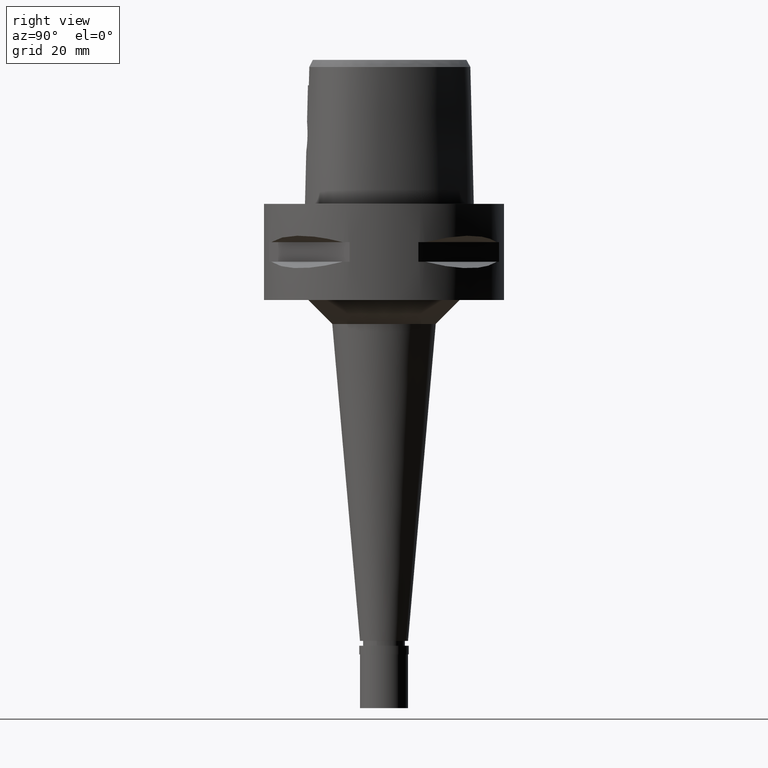
[diagram: clean part render]
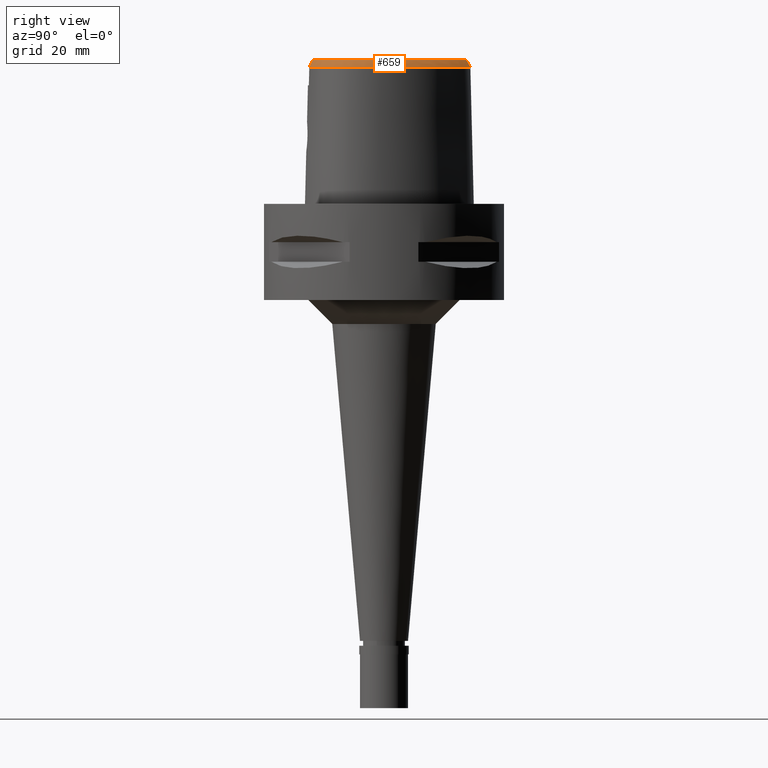
[diagram: same view with one face highlighted and labeled with its STEP entity id]
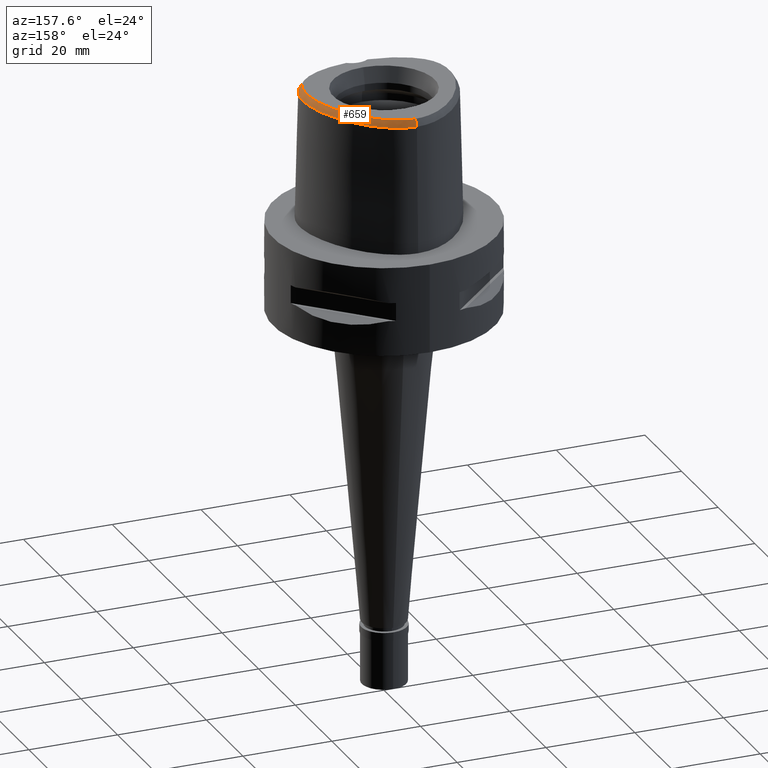
[diagram: same view with one face highlighted and labeled with its STEP entity id]
A machine part, right view. The second image highlights one B-rep face of the part: STEP entity #659.
A second angle (auxiliary view) of the same face is appended — the face is thin or edge-on in the first view.
In plain terms, the highlighted face is a freeform B-spline surface patch.
Its self-contained STEP definition (entity closure, byte-faithful):
#5 = CARTESIAN_POINT ( 'NONE',  ( 6.811957922873999927, -14.61906614561000062, 28.96164951612000138 ) ) ;
#23 = CARTESIAN_POINT ( 'NONE',  ( 5.383347431387000448, 15.79948695754999832, 29.55901468431999746 ) ) ;
#26 = EDGE_CURVE ( 'NONE', #850, #3437, #2330, .T. ) ;
#29 = CARTESIAN_POINT ( 'NONE',  ( 11.49884206355000060, -12.25755417911999956, 29.55901311661000008 ) ) ;
#49 = CARTESIAN_POINT ( 'NONE',  ( 11.99821396572000154, -11.51876842044000071, 30.15637882876000120 ) ) ;
#65 = CARTESIAN_POINT ( 'NONE',  ( 0.5630487155510999209, 17.05259666566999854, 30.15637892731999870 ) ) ;
#75 = CARTESIAN_POINT ( 'NONE',  ( 13.84595107261999836, -10.35026419380999840, 29.55901292788999868 ) ) ;
#104 = CARTESIAN_POINT ( 'NONE',  ( 15.85753994068999795, -8.668426278754999714, 28.36428066499999900 ) ) ;
#129 = CARTESIAN_POINT ( 'NONE',  ( 15.62682612950000127, -6.510507103326999889, 30.15637891547999772 ) ) ;
#142 = CARTESIAN_POINT ( 'NONE',  ( 13.38374903490383794, 6.636915464739277404, 30.00000000001027445 ) ) ;
#156 = CARTESIAN_POINT ( 'NONE',  ( 15.82776246383999919, -7.949589654748999479, 28.96164722686999937 ) ) ;
#170 = CARTESIAN_POINT ( 'NONE',  ( 2.406543924163999648, -14.80491841401999942, 30.00000000000000000 ) ) ;
#215 = CARTESIAN_POINT ( 'NONE',  ( 8.816245487876798848, -13.33426548781522669, 30.00000000000055422 ) ) ;
#221 = CARTESIAN_POINT ( 'NONE',  ( 14.53848563899000013, 5.623059560876999541, 28.96164762508000123 ) ) ;
#228 = CARTESIAN_POINT ( 'NONE',  ( 2.372804142232999958, -14.72121863141000020, 30.15637881881000126 ) ) ;
#237 = CARTESIAN_POINT ( 'NONE',  ( 11.92667412982082453, 9.061218325781521088, 30.00000000000179767 ) ) ;
#244 = CARTESIAN_POINT ( 'NONE',  ( 7.861194524857999077, 14.03209857615999923, 29.55901309603999749 ) ) ;
#271 = CARTESIAN_POINT ( 'NONE',  ( 16.25740607951000172, 0.6184107407232999343, 28.96164952428999939 ) ) ;
#290 = CARTESIAN_POINT ( 'NONE',  ( 12.13152840671999932, 9.199520325337998017, 29.55901329122000121 ) ) ;
#313 = CARTESIAN_POINT ( 'NONE',  ( 15.95690338998999991, 1.814945694562999812, 28.96164923533000035 ) ) ;
#344 = CARTESIAN_POINT ( 'NONE',  ( 3.272285797652000117, 17.15417183457000050, 28.96164633673999944 ) ) ;
#352 = CARTESIAN_POINT ( 'NONE',  ( 14.68963295328999941, -8.696932986701002122, 30.15637889382000125 ) ) ;
#369 = CARTESIAN_POINT ( 'NONE',  ( 0.04269977615394000142, 18.07562135881000387, 28.36428130445999685 ) ) ;
#376 = CARTESIAN_POINT ( 'NONE',  ( 9.156566131324998636, -14.18565747194999815, 28.36428102868000067 ) ) ;
#394 = CARTESIAN_POINT ( 'NONE',  ( 0.5865152085029999851, 17.38670808606000051, 29.55901288799000071 ) ) ;
#400 = CARTESIAN_POINT ( 'NONE',  ( 13.36047301656999942, -10.83551467842999827, 29.55901290853000063 ) ) ;
#418 = CARTESIAN_POINT ( 'NONE',  ( 1.288648341688999999, 17.98666989274000017, 28.36428074679000133 ) ) ;
#425 = CARTESIAN_POINT ( 'NONE',  ( 8.783709966213001152, -13.25287024225000110, 30.15637890634000229 ) ) ;
#440 = CARTESIAN_POINT ( 'NONE',  ( 1.242207169301999814, 17.65498039884000292, 28.96164680896000121 ) ) ;
#448 = CARTESIAN_POINT ( 'NONE',  ( 5.428109747420000630, -14.26950956910999757, 30.15637879781999686 ) ) ;
#474 = CARTESIAN_POINT ( 'NONE',  ( 16.13527758572000081, -8.082292195693000281, 28.36428140512000340 ) ) ;
#501 = CARTESIAN_POINT ( 'NONE',  ( 16.33217434728999606, -4.393003428644999708, 29.55901321837000140 ) ) ;
#515 = CARTESIAN_POINT ( 'NONE',  ( 15.90185233182071478, -0.6139199331566413953, 29.99999999999904077 ) ) ;
#527 = CARTESIAN_POINT ( 'NONE',  ( 15.43433514042999910, -7.119478767406000053, 30.15637888094000374 ) ) ;
#538 = CARTESIAN_POINT ( 'NONE',  ( 7.783816186093214462, -13.71424622166908414, 30.00000000000649436 ) ) ;
#563 = CARTESIAN_POINT ( 'NONE',  ( 11.36765809995607768, -12.04801986072790143, 30.00000000000257572 ) ) ;
#587 = CARTESIAN_POINT ( 'NONE',  ( 16.04058509949630107, -1.654113685488471930, 30.00000000000315126 ) ) ;
#592 = CARTESIAN_POINT ( 'NONE',  ( 9.600973720496998709, 12.37503909173999972, 29.55901343650000257 ) ) ;
#605 = CARTESIAN_POINT ( 'NONE',  ( 13.19176257967066235, -10.65479018522811749, 30.00000000000444089 ) ) ;
#613 = CARTESIAN_POINT ( 'NONE',  ( 9.189572803524999500, 13.73794398413000017, 28.36428364498000221 ) ) ;
#619 = CARTESIAN_POINT ( 'NONE',  ( 0.6295828025427904207, 17.98202997637829625, 28.52071728562181718 ) ) ;
#620 = CARTESIAN_POINT ( 'NONE',  ( 1.993554834557000222, -15.75790062269000202, 28.36428193357000183 ) ) ;
#639 = CARTESIAN_POINT ( 'NONE',  ( 7.214342649809000640, 14.97919597573999972, 28.96164659047000001 ) ) ;
#659 = ADVANCED_FACE ( 'NONE', ( #667 ), #3459, .F. ) ;
#661 = CARTESIAN_POINT ( 'NONE',  ( 11.31593430602999995, 10.34052834388999997, 29.55901314858000006 ) ) ;
#667 = FACE_OUTER_BOUND ( 'NONE', #2258, .T. ) ;
#684 = CARTESIAN_POINT ( 'NONE',  ( 13.60200919274999976, 6.752911650746000305, 29.55901304658999607 ) ) ;
#688 = CARTESIAN_POINT ( 'NONE',  ( 3.168920890822999770, -15.55911073834000113, 28.52071374672999582 ) ) ;
#707 = CARTESIAN_POINT ( 'NONE',  ( 0.6334481944069999537, 18.05493092684000089, 28.36428080932999762 ) ) ;
#736 = CARTESIAN_POINT ( 'NONE',  ( 14.09026485589999922, -10.57934665261000085, 28.96164694260999894 ) ) ;
#752 = CARTESIAN_POINT ( 'NONE',  ( 7.416339914482000140, 15.24625929495000065, 28.36428040260000216 ) ) ;
#757 = CARTESIAN_POINT ( 'NONE',  ( 6.900453772875000169, -14.94199332345999842, 28.36428501138999891 ) ) ;
#778 = CARTESIAN_POINT ( 'NONE',  ( -0.3447936284497999937, 18.06486498122000128, 28.36428104704999953 ) ) ;
#785 = CARTESIAN_POINT ( 'NONE',  ( 13.58901004801000134, -11.08032608396999841, 28.96164689701999961 ) ) ;
#806 = CARTESIAN_POINT ( 'NONE',  ( 1.195765996915000073, 17.32329090494999946, 29.55901287113000109 ) ) ;
#814 = CARTESIAN_POINT ( 'NONE',  ( 12.38837415017999888, -12.06316683604999973, 28.96164750303000091 ) ) ;
#834 = CARTESIAN_POINT ( 'NONE',  ( 3.168920890822999770, -15.55911073834000113, 28.52071374672999582 ) ) ;
#835 = CARTESIAN_POINT ( 'NONE',  ( 4.198834560233000168, -14.84173614520000051, 29.55901279253000169 ) ) ;
#850 = VERTEX_POINT ( 'NONE', #3771 ) ;
#863 = CARTESIAN_POINT ( 'NONE',  ( 16.57619388313999664, -5.233097250372000353, 28.96164704107999910 ) ) ;
#890 = CARTESIAN_POINT ( 'NONE',  ( 16.37265104723999798, -3.537233261996999722, 29.55901301200000120 ) ) ;
#902 = CARTESIAN_POINT ( 'NONE',  ( 15.87349190488043149, -5.869792298897770877, 30.00000000000364864 ) ) ;
#905 = EDGE_CURVE ( 'NONE', #2325, #3884, #1146, .T. ) ;
#922 = CARTESIAN_POINT ( 'NONE',  ( 16.08569500455402590, -4.373922630229267305, 29.99999999999926459 ) ) ;
#946 = CARTESIAN_POINT ( 'NONE',  ( 7.700998872106708859, 13.84384558891352590, 30.00000000000675016 ) ) ;
#969 = CARTESIAN_POINT ( 'NONE',  ( 5.258649622039808236, 15.58603480843260947, 30.00000000000086331 ) ) ;
#975 = CARTESIAN_POINT ( 'NONE',  ( 13.47169455684000106, 8.342811227810999597, 28.36428103828000147 ) ) ;
#988 = CARTESIAN_POINT ( 'NONE',  ( 6.863227115065181572, 14.51498137220724161, 29.99999999999699796 ) ) ;
#995 = CARTESIAN_POINT ( 'NONE',  ( 8.295200145402001013, 14.54211775047999922, 28.36428158102999930 ) ) ;
#1005 = B_SPLINE_CURVE_WITH_KNOTS ( 'NONE', 3,
 ( #4054, #2666, #4781, #3342 ),
 .UNSPECIFIED., .F., .F.,
 ( 4, 4 ),
 ( 0.0000000000000000000, 1.000000000000000000 ),
 .UNSPECIFIED. ) ;
#1018 = CARTESIAN_POINT ( 'NONE',  ( 15.57112484373000072, 3.057090549056999951, 28.96164699042999757 ) ) ;
#1028 = CARTESIAN_POINT ( 'NONE',  ( 16.47905536661487247, -6.962316254603639010, 28.52071728562181718 ) ) ;
#1045 = CARTESIAN_POINT ( 'NONE',  ( 14.78757469967999860, 4.206445065431000607, 29.55901289882999805 ) ) ;
#1049 = CARTESIAN_POINT ( 'NONE',  ( 14.26907046692155845, -10.79012245165770878, 28.52071728562181718 ) ) ;
#1068 = CARTESIAN_POINT ( 'NONE',  ( 6.557248700363000005, 15.85608241095999915, 28.36428490705000272 ) ) ;
#1079 = CARTESIAN_POINT ( 'NONE',  ( 1.921221870050999980, -14.75651979482999998, 30.15637881982999957 ) ) ;
#1107 = CARTESIAN_POINT ( 'NONE',  ( 11.33338046473983418, -13.08225241902047742, 28.52071728562181718 ) ) ;
#1108 = CARTESIAN_POINT ( 'NONE',  ( 8.075087580344998628, -14.58361699994999761, 28.36428427248999995 ) ) ;
#1124 = CARTESIAN_POINT ( 'NONE',  ( -0.3070870358840999681, 17.06141486598999890, 30.15637890457999859 ) ) ;
#1130 = CARTESIAN_POINT ( 'NONE',  ( 11.04319991634000075, -13.30015657062999956, 28.36428094823999757 ) ) ;
#1144 = CARTESIAN_POINT ( 'NONE',  ( 3.870148887526999815, 16.56237951852999757, 29.55901320577000035 ) ) ;
#1146 = B_SPLINE_CURVE_WITH_KNOTS ( 'NONE', 3,
 ( #2009, #1704, #4606, #3876, #4233, #1662, #1682, #3205, #1286, #969, #1263, #988, #946, #2034, #4298, #2804, #3183, #237, #1630, #142, #4647, #4320, #4627, #3941, #2782, #515, #587, #2418, #1725, #922, #4584, #902, #2483, #2461, #3562, #1330, #2831, #2076, #4670, #3922, #605, #4251, #3495, #563, #2057, #3126, #215, #538, #2761, #3580, #3228, #2398, #3521, #170 ),
 .UNSPECIFIED., .F., .F.,
 ( 4, 1, 1, 1, 1, 1, 1, 1, 1, 1, 1, 1, 1, 1, 1, 1, 1, 1, 1, 1, 1, 1, 1, 1, 1, 1, 1, 1, 1, 1, 1, 1, 1, 1, 1, 1, 1, 1, 1, 1, 1, 1, 1, 1, 1, 1, 1, 1, 1, 1, 1, 4 ),
 ( 0.0000000000000000000, 0.01988587058640001182, 0.03977174117009996124, 0.05965761175399997285, 0.07954348233780006439, 0.09942935292160004490, 0.1193152235055000565, 0.1392010940893000370, 0.1590869646731999376, 0.1789728352568999981, 0.1988587058408000097, 0.2187445764247000213, 0.2386304470083999707, 0.2585163175922999823, 0.2784021881761000738, 0.2982880587598999433, 0.3181739293438000660, 0.3380597999276000465, 0.3579456705113999160, 0.3778315410952000075, 0.3977174116791000191, 0.4176032822630000307, 0.4374891528466999802, 0.4573750234305999918, 0.4772608940143999723, 0.4971467645981999528, 0.5170326351820999644, 0.5369185057659000559, 0.5568043763497000365, 0.5766902469335999371, 0.5965761175174000286, 0.6164619881012000091, 0.6363478586849999896, 0.6562337292689000012, 0.6761195998528000128, 0.6960054704364999623, 0.7158913410203999739, 0.7357772116042000654, 0.7556630821880000459, 0.7755489527718999465, 0.7954348233557000381, 0.8153206939395000186, 0.8352065645232999991, 0.8550924351072000107, 0.8749783056909999912, 0.8948641762747999717, 0.9147500468586799993, 0.9346359174424899718, 0.9545217880263200394, 0.9744076586101599879, 0.9942935291939859477, 1.000000000000000000 ),
 .UNSPECIFIED. ) ;
#1149 = CARTESIAN_POINT ( 'NONE',  ( 4.145919954188999945, -14.51112016386000114, 30.15637896116000150 ) ) ;
#1169 = CARTESIAN_POINT ( 'NONE',  ( 0.03975722115209000262, 17.40584913369000120, 29.55901302146999754 ) ) ;
#1174 = CARTESIAN_POINT ( 'NONE',  ( 4.251749166277000391, -15.17235212653999987, 28.96164662389000455 ) ) ;
#1201 = CARTESIAN_POINT ( 'NONE',  ( 14.27377831343000025, -9.861113513142999665, 29.55901308940000050 ) ) ;
#1224 = CARTESIAN_POINT ( 'NONE',  ( 16.27208702944000152, -6.690234237660000360, 28.96164692721999856 ) ) ;
#1248 = CARTESIAN_POINT ( 'NONE',  ( 16.24460968378999937, -5.186137865231000177, 29.55901296969999947 ) ) ;
#1263 = CARTESIAN_POINT ( 'NONE',  ( 6.048015628560055923, 15.09357031579881436, 30.00000000000177991 ) ) ;
#1286 = CARTESIAN_POINT ( 'NONE',  ( 4.499552315895770427, 15.99769543814282002, 30.00000000000135358 ) ) ;
#1330 = CARTESIAN_POINT ( 'NONE',  ( 15.04259016984939379, -8.247723288183152590, 30.00000000000323297 ) ) ;
#1340 = CARTESIAN_POINT ( 'NONE',  ( 12.61078246347000054, 7.825357970991000833, 30.15637890542999955 ) ) ;
#1360 = CARTESIAN_POINT ( 'NONE',  ( 8.078197335130001377, 14.28710816332000100, 28.96164733852999973 ) ) ;
#1366 = CARTESIAN_POINT ( 'NONE',  ( 15.84228676732985974, 3.460033425849729394, 28.52071728562181718 ) ) ;
#1382 = CARTESIAN_POINT ( 'NONE',  ( 15.09817487549999981, 4.331479311237999674, 28.96164687419999950 ) ) ;
#1390 = CARTESIAN_POINT ( 'NONE',  ( 4.422474504766016778, 17.08283549832751547, 28.52071728562181718 ) ) ;
#1409 = CARTESIAN_POINT ( 'NONE',  ( 15.81535064210000030, -0.6281001624691999741, 30.15637880266000082 ) ) ;
#1434 = CARTESIAN_POINT ( 'NONE',  ( 14.93737887550000032, 2.840754862860999985, 30.15637890596000048 ) ) ;
#1439 = CARTESIAN_POINT ( 'NONE',  ( 15.58740368722081548, -8.999391713747634469, 28.52071728562181718 ) ) ;
#1461 = CARTESIAN_POINT ( 'NONE',  ( 5.902447799197319434, -15.16907841529253886, 28.52071728562181718 ) ) ;
#1463 = CARTESIAN_POINT ( 'NONE',  ( 10.14507675808999920, -13.75562869518999953, 28.36428077143000337 ) ) ;
#1485 = CARTESIAN_POINT ( 'NONE',  ( 6.185303998690000249, 15.29914227989000075, 29.55901399271999708 ) ) ;
#1491 = CARTESIAN_POINT ( 'NONE',  ( 7.968715019489000184, -14.26612205246999920, 28.96164904707000076 ) ) ;
#1508 = CARTESIAN_POINT ( 'NONE',  ( 0.04122849865300999561, 17.74073524625000076, 28.96164716295999852 ) ) ;
#1516 = CARTESIAN_POINT ( 'NONE',  ( 6.634966222872999531, -13.97321178992000057, 30.15637852557999921 ) ) ;
#1537 = CARTESIAN_POINT ( 'NONE',  ( 12.59962777141000068, -11.05698296501999955, 30.15637892080999904 ) ) ;
#1556 = CARTESIAN_POINT ( 'NONE',  ( -0.4663366535901999899, 17.05306950905000107, 30.15637893935999969 ) ) ;
#1564 = CARTESIAN_POINT ( 'NONE',  ( 12.58345424240000021, -12.33536604384999968, 28.36428184016999765 ) ) ;
#1592 = CARTESIAN_POINT ( 'NONE',  ( 15.94945657947000051, -6.600370670492999636, 29.55901292135000347 ) ) ;
#1616 = CARTESIAN_POINT ( 'NONE',  ( 16.11551996699000000, -5.920249058447999424, 29.55901289326999759 ) ) ;
#1630 = CARTESIAN_POINT ( 'NONE',  ( 12.68590586676948284, 7.870511070825564559, 30.00000000000679279 ) ) ;
#1647 = CARTESIAN_POINT ( 'NONE',  ( 15.52024734197000022, -7.816887113804999565, 29.55901304861000156 ) ) ;
#1662 = CARTESIAN_POINT ( 'NONE',  ( 2.412811123805013391, 16.81558681049622095, 30.00000000000830624 ) ) ;
#1682 = CARTESIAN_POINT ( 'NONE',  ( 3.078265684543715519, 16.60532678263180628, 30.00000000000247624 ) ) ;
#1704 = CARTESIAN_POINT ( 'NONE',  ( 0.1912597614439594529, 17.15328888648638639, 30.00000000000587619 ) ) ;
#1710 = CARTESIAN_POINT ( 'NONE',  ( 10.72396377807000079, 11.61800991063999966, 28.96164665574000097 ) ) ;
#1725 = CARTESIAN_POINT ( 'NONE',  ( 16.12546998862716308, -3.533461825553556146, 30.00000000000563460 ) ) ;
#1736 = CARTESIAN_POINT ( 'NONE',  ( 15.40877505133000014, 4.456513557045999718, 28.36428084955999651 ) ) ;
#1761 = CARTESIAN_POINT ( 'NONE',  ( 15.25425185961000096, 2.948922705958999746, 29.55901294819999947 ) ) ;
#1766 = CARTESIAN_POINT ( 'NONE',  ( 2.159414158918000037, -15.74591782496000114, 28.36428195439999911 ) ) ;
#1781 = CARTESIAN_POINT ( 'NONE',  ( 16.27920010292000086, 1.905703628979000142, 28.36428456906000051 ) ) ;
#1792 = CARTESIAN_POINT ( 'NONE',  ( 1.945332858220000016, -15.09031340411999977, 29.55901319108000180 ) ) ;
#1809 = CARTESIAN_POINT ( 'NONE',  ( 13.89766682646999918, 6.910041372508000102, 28.96164722209999809 ) ) ;
#1820 = CARTESIAN_POINT ( 'NONE',  ( 8.702202469522497097, -14.36510984286025483, 28.52071728562181718 ) ) ;
#1835 = CARTESIAN_POINT ( 'NONE',  ( -0.3322247642612000118, 17.73038160947000108, 28.96164699955999922 ) ) ;
#1842 = CARTESIAN_POINT ( 'NONE',  ( 14.97564992669000006, -8.871229260114001036, 29.55901298242000053 ) ) ;
#1864 = CARTESIAN_POINT ( 'NONE',  ( 10.72314195953000038, -12.71184929392000029, 29.55901292543000025 ) ) ;
#1883 = CARTESIAN_POINT ( 'NONE',  ( 5.999331647853999527, 15.02067221435000022, 30.15637853556000181 ) ) ;
#1891 = CARTESIAN_POINT ( 'NONE',  ( 9.860652439441000894, -13.14931146643000126, 29.55901287776999808 ) ) ;
#1915 = CARTESIAN_POINT ( 'NONE',  ( 10.88317093793000012, -13.00600293227000037, 28.96164693683999758 ) ) ;
#1931 = CARTESIAN_POINT ( 'NONE',  ( -0.5038393650865000684, 17.72130576345999842, 28.96164676863000054 ) ) ;
#1939 = CARTESIAN_POINT ( 'NONE',  ( 13.13193598513000104, -10.59070327289999902, 30.15637892002999720 ) ) ;
#1965 = EDGE_CURVE ( 'NONE', #850, #2325, #3429, .T. ) ;
#1971 = CARTESIAN_POINT ( 'NONE',  ( 16.99994165718999639, -4.444697551515999656, 28.36428203480000221 ) ) ;
#1997 = CARTESIAN_POINT ( 'NONE',  ( 15.55991959139999992, -8.514785188862999732, 28.96164675704000047 ) ) ;
#2009 = CARTESIAN_POINT ( 'NONE',  ( -6.303691439142001614E-11, 17.15328888647999861, 30.00000000000000000 ) ) ;
#2019 = CARTESIAN_POINT ( 'NONE',  ( 16.70748525432000164, -3.542342091685999783, 28.96164714065000112 ) ) ;
#2034 = CARTESIAN_POINT ( 'NONE',  ( 8.557117433366935089, 13.07415149353122175, 30.00000000000441958 ) ) ;
#2057 = CARTESIAN_POINT ( 'NONE',  ( 10.60500548644273522, -12.49469941439894960, 29.99999999999964828 ) ) ;
#2076 = CARTESIAN_POINT ( 'NONE',  ( 14.44767169633218806, -9.224476417585487198, 30.00000000000324718 ) ) ;
#2081 = CARTESIAN_POINT ( 'NONE',  ( 10.97999818271999928, 11.83377388643000039, 28.36428050542999912 ) ) ;
#2106 = CARTESIAN_POINT ( 'NONE',  ( 15.95340525056999859, -1.663261361530000038, 30.15637895961999959 ) ) ;
#2111 = CARTESIAN_POINT ( 'NONE',  ( 7.523733068098485077, 15.26501041874442954, 28.52071728562181718 ) ) ;
#2112 = CARTESIAN_POINT ( 'NONE',  ( 3.120169910351000109, -14.64780224869000058, 30.15637884598000085 ) ) ;
#2129 = CARTESIAN_POINT ( 'NONE',  ( 15.31230996412999978, 1.633429825731999907, 30.15637856787000359 ) ) ;
#2150 = CARTESIAN_POINT ( 'NONE',  ( 14.84201099019000125, 5.764396329479000158, 28.36428203243999846 ) ) ;
#2171 = CARTESIAN_POINT ( 'NONE',  ( 15.63460667705999718, 1.724187760148000237, 29.55901390160000020 ) ) ;
#2196 = CARTESIAN_POINT ( 'NONE',  ( 5.552264468761999971, 16.08863160922999924, 28.96165107833000008 ) ) ;
#2206 = CARTESIAN_POINT ( 'NONE',  ( 2.107143672687000091, -15.07862304301999856, 29.55901319669999694 ) ) ;
#2220 = CARTESIAN_POINT ( 'NONE',  ( 2.479732937904999712, 17.05359326648000007, 29.55901289546000044 ) ) ;
#2225 = CARTESIAN_POINT ( 'NONE',  ( 6.723462072872999684, -14.29613896777000015, 29.55901402085000029 ) ) ;
#2240 = CARTESIAN_POINT ( 'NONE',  ( 4.912545710174999414, 16.81639870465999920, 28.36428619404000173 ) ) ;
#2246 = CARTESIAN_POINT ( 'NONE',  ( 13.02378100684000017, -11.57536136220000067, 28.96164689183000007 ) ) ;
#2258 = EDGE_LOOP ( 'NONE', ( #3133, #4649, #4227, #3135 ) ) ;
#2274 = CARTESIAN_POINT ( 'NONE',  ( 5.498797574512000352, -14.59679100972000043, 29.55901325314000161 ) ) ;
#2297 = CARTESIAN_POINT ( 'NONE',  ( 3.160665751652000033, 16.83842049846999700, 29.55901267057000226 ) ) ;
#2305 = CARTESIAN_POINT ( 'NONE',  ( 10.56311298112000152, -12.41769565555999932, 30.15637891403000026 ) ) ;
#2325 = VERTEX_POINT ( 'NONE', #4710 ) ;
#2330 = B_SPLINE_CURVE_WITH_KNOTS ( 'NONE', 3,
 ( #3263, #619, #4702, #1390, #2111, #3593, #4681, #1366, #2865, #2889, #4353, #1028, #4022, #1439, #4773, #1049, #3688, #1107, #1820, #1461, #2565, #688 ),
 .UNSPECIFIED., .F., .F.,
 ( 4, 1, 1, 1, 1, 1, 1, 1, 1, 1, 1, 1, 1, 1, 1, 1, 1, 1, 1, 4 ),
 ( 0.0000000000000000000, 0.04404152929334106265, 0.08808305858551930545, 0.1761661171698760131, 0.2642491757542327346, 0.3523322343385894562, 0.4404152929230517599, 0.5284983515074085370, 0.5725398807995868422, 0.6165814100917650364, 0.6606229393839435637, 0.6826437040300327164, 0.7046644686762275622, 0.7266852333222110216, 0.7487059979683001743, 0.7927475272605842838, 0.8367890565527625890, 0.8808305858448352010, 0.9689136444292975048, 1.000000000000000000 ),
 .UNSPECIFIED. ) ;
#2332 = CARTESIAN_POINT ( 'NONE',  ( 16.35967832178000236, -2.616279235973999917, 29.55901293963999876 ) ) ;
#2359 = CARTESIAN_POINT ( 'NONE',  ( 16.59471747941999809, -6.780097804826000107, 28.36428093309000076 ) ) ;
#2388 = CARTESIAN_POINT ( 'NONE',  ( 15.21273222009000037, -7.684184572860999651, 30.15637887035000020 ) ) ;
#2398 = CARTESIAN_POINT ( 'NONE',  ( 3.130495111450797285, -14.73481892791780901, 30.00000000000195044 ) ) ;
#2418 = CARTESIAN_POINT ( 'NONE',  ( 16.11273027396887869, -2.627494158581054506, 29.99999999999850075 ) ) ;
#2448 = CARTESIAN_POINT ( 'NONE',  ( 15.88799782783999959, 3.165258392155000156, 28.36428103266000278 ) ) ;
#2461 = CARTESIAN_POINT ( 'NONE',  ( 15.51702143705522374, -7.148634146069892559, 30.00000000000114753 ) ) ;
#2470 = CARTESIAN_POINT ( 'NONE',  ( 16.80665757851000208, -0.4655951325349999559, 28.36428211316999892 ) ) ;
#2483 = CARTESIAN_POINT ( 'NONE',  ( 15.71128456932136253, -6.534031654962888069, 30.00000000000178701 ) ) ;
#2488 = CARTESIAN_POINT ( 'NONE',  ( 3.738422326385999916, 16.25448454957999900, 30.15637881462999914 ) ) ;
#2491 = CARTESIAN_POINT ( 'NONE',  ( 13.93143493656999965, 5.340386023671999993, 30.15637881038000145 ) ) ;
#2516 = CARTESIAN_POINT ( 'NONE',  ( 12.89775316126000071, 7.997842389931000717, 29.55901294971000226 ) ) ;
#2537 = CARTESIAN_POINT ( 'NONE',  ( 7.644191714585999442, 13.77708898898999834, 30.15637885354000147 ) ) ;
#2557 = CARTESIAN_POINT ( 'NONE',  ( 1.893876499782999989, 17.54140943430000021, 28.96164719700000134 ) ) ;
#2565 = CARTESIAN_POINT ( 'NONE',  ( 3.738627708318569720, -15.49270856215134629, 28.52071728562181718 ) ) ;
#2588 = CARTESIAN_POINT ( 'NONE',  ( 4.460069093866000145, 15.91942531736999911, 30.15637841251999873 ) ) ;
#2597 = CARTESIAN_POINT ( 'NONE',  ( 15.54768387348000047, -9.219821806938000464, 28.36428115962999996 ) ) ;
#2610 = CARTESIAN_POINT ( 'NONE',  ( -0.3196559000726000299, 17.39589823773000177, 29.55901295207000246 ) ) ;
#2615 = CARTESIAN_POINT ( 'NONE',  ( 11.85424857146999855, -12.82522920847000059, 28.36428165732999673 ) ) ;
#2630 = CARTESIAN_POINT ( 'NONE',  ( 1.962768353894999818, 17.86916529302999734, 28.36428135806999862 ) ) ;
#2637 = CARTESIAN_POINT ( 'NONE',  ( 10.00286459876000045, -13.45247008081000040, 28.96164682459999895 ) ) ;
#2666 = CARTESIAN_POINT ( 'NONE',  ( 2.935843368179272606, -15.25651436811634554, 29.10537844861361023 ) ) ;
#2667 = CARTESIAN_POINT ( 'NONE',  ( 14.33457863917000097, -10.80842911140999973, 28.36428095732999921 ) ) ;
#2693 = CARTESIAN_POINT ( 'NONE',  ( 14.79230535219000053, -10.28517014352999759, 28.36428155645000260 ) ) ;
#2719 = CARTESIAN_POINT ( 'NONE',  ( 16.06605689950999860, -7.342225314874998965, 28.96164715656000155 ) ) ;
#2745 = CARTESIAN_POINT ( 'NONE',  ( 16.66605800223999978, -4.418850490080000526, 28.96164762659000047 ) ) ;
#2761 = CARTESIAN_POINT ( 'NONE',  ( 6.658132732489084660, -14.05774790738687585, 29.99999999999803180 ) ) ;
#2782 = CARTESIAN_POINT ( 'NONE',  ( 15.68929135223891258, 0.4919393172819804816, 29.99999999999840128 ) ) ;
#2804 = CARTESIAN_POINT ( 'NONE',  ( 10.27891984617800780, 11.24296481357583133, 29.99999999999687006 ) ) ;
#2831 = CARTESIAN_POINT ( 'NONE',  ( 14.76450668990713133, -8.742560395150823283, 29.99999999999891998 ) ) ;
#2840 = CARTESIAN_POINT ( 'NONE',  ( 8.727626325574998845, 13.25310882011999958, 29.55901365247000001 ) ) ;
#2860 = CARTESIAN_POINT ( 'NONE',  ( 16.95248387246000021, -1.558429250837999991, 28.36428047141000164 ) ) ;
#2865 = CARTESIAN_POINT ( 'NONE',  ( 16.79165444020195608, -0.3537785292841568729, 28.52071728562181718 ) ) ;
#2882 = CARTESIAN_POINT ( 'NONE',  ( 17.02871545787999707, -2.585895518551999839, 28.36428100092999927 ) ) ;
#2889 = CARTESIAN_POINT ( 'NONE',  ( 16.99625257116976229, -3.273868232427299851, 28.52071728562181718 ) ) ;
#2909 = CARTESIAN_POINT ( 'NONE',  ( 12.68652416373000058, 9.574211174364998911, 28.36428230502000147 ) ) ;
#2932 = CARTESIAN_POINT ( 'NONE',  ( 15.93056887189000115, 0.5456515516059999849, 29.55901402432000324 ) ) ;
#2964 = CARTESIAN_POINT ( 'NONE',  ( 11.67654531750999958, -12.54139169379000052, 28.96164738697000018 ) ) ;
#2981 = CARTESIAN_POINT ( 'NONE',  ( 3.383905843652000200, 17.46992317068000133, 28.36428000290999663 ) ) ;
#2988 = CARTESIAN_POINT ( 'NONE',  ( 12.81170438913000176, -11.31617216361000011, 29.55901290631999956 ) ) ;
#3007 = CARTESIAN_POINT ( 'NONE',  ( 5.640173228695999796, -15.25135389095999905, 28.36428216377999689 ) ) ;
#3030 = CARTESIAN_POINT ( 'NONE',  ( 11.32113880959999896, -11.97371666443999949, 30.15637884624000264 ) ) ;
#3048 = CARTESIAN_POINT ( 'NONE',  ( 2.570385970486000371, 17.37599945494999787, 28.96164686623999884 ) ) ;
#3058 = CARTESIAN_POINT ( 'NONE',  ( 4.304663772320999726, -15.50296810788000101, 28.36428045526000119 ) ) ;
#3083 = CARTESIAN_POINT ( 'NONE',  ( 15.26229924212000100, -8.361144098971999838, 29.55901284907999838 ) ) ;
#3110 = CARTESIAN_POINT ( 'NONE',  ( 15.75019601996999974, -7.230852041140000352, 29.55901301875000087 ) ) ;
#3126 = CARTESIAN_POINT ( 'NONE',  ( 9.755668685252675942, -12.92551394022788536, 29.99999999999864642 ) ) ;
#3133 = ORIENTED_EDGE ( 'NONE', *, *, #26, .F. ) ;
#3135 = ORIENTED_EDGE ( 'NONE', *, *, #4712, .F. ) ;
#3143 = CARTESIAN_POINT ( 'NONE',  ( 16.02515975372999790, -2.631471094684999734, 30.15637890898999984 ) ) ;
#3180 = CARTESIAN_POINT ( 'NONE',  ( 2.406543924163999648, -14.80491841401999942, 30.00000000000000000 ) ) ;
#3183 = CARTESIAN_POINT ( 'NONE',  ( 11.11868440496096255, 10.19157821280170673, 30.00000000000030553 ) ) ;
#3205 = CARTESIAN_POINT ( 'NONE',  ( 3.772905803807436342, 16.33508552418975057, 30.00000000000806111 ) ) ;
#3212 = CARTESIAN_POINT ( 'NONE',  ( 16.61945766516000234, -1.593373287734999977, 28.96164663415000007 ) ) ;
#3228 = CARTESIAN_POINT ( 'NONE',  ( 4.159771979224619720, -14.59766906203926240, 30.00000000000083489 ) ) ;
#3239 = CARTESIAN_POINT ( 'NONE',  ( 12.40902628523000040, 9.386865749850999308, 28.96164779812000134 ) ) ;
#3257 = CARTESIAN_POINT ( 'NONE',  ( 14.47697452385000005, 4.081410819624000652, 30.15637892347000104 ) ) ;
#3263 = CARTESIAN_POINT ( 'NONE',  ( -3.096462930624999809E-11, 17.98202997909999823, 28.52071728569000086 ) ) ;
#3264 = CARTESIAN_POINT ( 'NONE',  ( 2.081008429571999940, -14.74497565205000171, 30.15637881784000029 ) ) ;
#3281 = CARTESIAN_POINT ( 'NONE',  ( 9.357006109783000625, 12.14571221647999977, 30.15637873281000125 ) ) ;
#3307 = CARTESIAN_POINT ( 'NONE',  ( 10.08890894192000154, 12.83369284225999962, 28.36428284390000343 ) ) ;
#3330 = CARTESIAN_POINT ( 'NONE',  ( -0.5225907208347000399, 18.05542389065999842, 28.36428068325999874 ) ) ;
#3337 = CARTESIAN_POINT ( 'NONE',  ( 3.238496425164000048, -15.64501095038000145, 28.36428166005000051 ) ) ;
#3339 = DIRECTION ( 'NONE',  ( -1.891490855257029634E-11, -0.4887572537803078765, 0.8724198226067148010 ) ) ;
#3342 = CARTESIAN_POINT ( 'NONE',  ( 2.406543924163999648, -14.80491841401999942, 30.00000000000000000 ) ) ;
#3353 = CARTESIAN_POINT ( 'NONE',  ( 4.761720171406000013, 16.51740757556000005, 28.96165026686999866 ) ) ;
#3359 = CARTESIAN_POINT ( 'NONE',  ( 12.19329405794999843, -11.79096762824000066, 29.55901316590000150 ) ) ;
#3376 = CARTESIAN_POINT ( 'NONE',  ( 0.03828594365115999681, 17.07096302112999808, 30.15637887998000011 ) ) ;
#3384 = CARTESIAN_POINT ( 'NONE',  ( 14.01451479404999922, -9.649085197949000658, 30.15637885587999989 ) ) ;
#3404 = CARTESIAN_POINT ( 'NONE',  ( 14.53304183280999951, -10.07314182833999894, 28.96164732293000199 ) ) ;
#3418 = CARTESIAN_POINT ( 'NONE',  ( 2.661039003067000142, 17.69840564341000189, 28.36428083702999814 ) ) ;
#3428 = CARTESIAN_POINT ( 'NONE',  ( 3.159612081955000207, -14.98020514925999969, 29.55901311734000103 ) ) ;
#3429 = LINE ( 'NONE', #3813, #4586 ) ;
#3437 = VERTEX_POINT ( 'NONE', #834 ) ;
#3455 = CARTESIAN_POINT ( 'NONE',  ( 16.77122776855999930, -6.056947632118000691, 28.36428082892999925 ) ) ;
#3459 = B_SPLINE_SURFACE_WITH_KNOTS ( 'NONE', 3, 3, ( 
 ( #1079, #1792, #4047, #620 ),
 ( #3264, #2206, #4001, #1766 ),
 ( #228, #4661, #4312, #3951 ),
 ( #2112, #3428, #4775, #3337 ),
 ( #1149, #835, #1174, #3058 ),
 ( #448, #2274, #4450, #3007 ),
 ( #1516, #2225, #5, #757 ),
 ( #3709, #4113, #1491, #1108 ),
 ( #425, #4470, #4091, #376 ),
 ( #4496, #1891, #2637, #1463 ),
 ( #2305, #1864, #1915, #1130 ),
 ( #3030, #29, #2964, #2615 ),
 ( #49, #3359, #814, #1564 ),
 ( #1537, #2988, #2246, #3729 ),
 ( #1939, #400, #785, #4523 ),
 ( #3756, #75, #736, #2667 ),
 ( #3384, #1201, #3404, #2693 ),
 ( #4139, #4168, #3780, #3689 ),
 ( #352, #1842, #4426, #2597 ),
 ( #4071, #3083, #1997, #104 ),
 ( #2388, #1647, #156, #474 ),
 ( #527, #3110, #2719, #3484 ),
 ( #129, #1592, #1224, #2359 ),
 ( #4545, #1616, #4193, #3455 ),
 ( #4571, #1248, #863, #3839 ),
 ( #4218, #501, #2745, #1971 ),
 ( #3864, #890, #2019, #3507 ),
 ( #3143, #2332, #3812, #2882 ),
 ( #2106, #4348, #3212, #2860 ),
 ( #1409, #3994, #4696, #2470 ),
 ( #3588, #2932, #271, #3567 ),
 ( #2129, #2171, #313, #1781 ),
 ( #1434, #1761, #1018, #2448 ),
 ( #3257, #1045, #1382, #1736 ),
 ( #2491, #3968, #221, #2150 ),
 ( #4394, #684, #1809, #4652 ),
 ( #1340, #2516, #4326, #975 ),
 ( #3614, #290, #3239, #2909 ),
 ( #3927, #661, #3947, #4374 ),
 ( #3636, #3656, #1710, #2081 ),
 ( #3281, #592, #4721, #3307 ),
 ( #4677, #2840, #4306, #613 ),
 ( #2537, #244, #1360, #995 ),
 ( #4016, #4745, #639, #752 ),
 ( #1883, #1485, #4420, #1068 ),
 ( #4084, #23, #2196, #3772 ),
 ( #2588, #4106, #3353, #2240 ),
 ( #2488, #1144, #3704, #3683 ),
 ( #4768, #2297, #344, #2981 ),
 ( #4038, #2220, #3048, #3418 ),
 ( #4487, #4443, #2557, #2630 ),
 ( #3723, #806, #440, #418 ),
 ( #65, #394, #4465, #707 ),
 ( #3376, #1169, #1508, #369 ),
 ( #1124, #2610, #1835, #778 ),
 ( #1556, #4130, #1931, #3330 ) ),
 .UNSPECIFIED., .F., .F., .F.,
 ( 4, 1, 1, 1, 1, 1, 1, 1, 1, 1, 1, 1, 1, 1, 1, 1, 1, 1, 1, 1, 1, 1, 1, 1, 1, 1, 1, 1, 1, 1, 1, 1, 1, 1, 1, 1, 1, 1, 1, 1, 1, 1, 1, 1, 1, 1, 1, 1, 1, 1, 1, 1, 1, 4 ),
 ( 4, 4 ),
 ( -0.006850724150829000207, 0.0000000000000000000, 0.005706470806014000280, 0.02559234138984000165, 0.04547821197368000223, 0.06536408255751000040, 0.08524995314132000068, 0.1051358237252000005, 0.1250216943090000088, 0.1449075648927999893, 0.1647934354767000009, 0.1846793060604999814, 0.2045651766443000175, 0.2244510472280999980, 0.2443369178119999818, 0.2642227883957999901, 0.2841086589796000261, 0.3039945295635000377, 0.3238804001471999872, 0.3437662707310999988, 0.3636521413150000104, 0.3835380118987999909, 0.4034238824826000269, 0.4233097530664000074, 0.4431956236502999635, 0.4630814942340999996, 0.4829673648179000356, 0.5028532354018000472, 0.5227391059856000277, 0.5426249765694000082, 0.5625108471533000198, 0.5823967177369999693, 0.6022825883208999809, 0.6221684589047999925, 0.6420543294886000840, 0.6619402000723999535, 0.6818260706561999340, 0.7017119412401000567, 0.7215978118238999262, 0.7414836824077000177, 0.7613695529916000293, 0.7812554235752999787, 0.8011412941591999903, 0.8210271647431000019, 0.8409130353268000624, 0.8607989059106999630, 0.8806847764944999435, 0.9005706470783999551, 0.9204565176621999356, 0.9403423882460000272, 0.9602282588299000388, 0.9801141294135999882, 1.000000000000000000, 1.016057694064999906 ),
 ( -0.08241542763303999486, 1.082447135563999963 ),
 .UNSPECIFIED. ) ;
#3484 = CARTESIAN_POINT ( 'NONE',  ( 16.38191777904999924, -7.453598588609000153, 28.36428129437999957 ) ) ;
#3495 = CARTESIAN_POINT ( 'NONE',  ( 12.04928217776099331, -11.59002493207305839, 30.00000000000168399 ) ) ;
#3507 = CARTESIAN_POINT ( 'NONE',  ( 17.04231946139000087, -3.547450921375999933, 28.36428126930999838 ) ) ;
#3521 = CARTESIAN_POINT ( 'NONE',  ( 2.538962679605529349, -14.79292722369798341, 30.00000000000212808 ) ) ;
#3562 = CARTESIAN_POINT ( 'NONE',  ( 15.29323375805024021, -7.718923543003160859, 30.00000000000017053 ) ) ;
#3567 = CARTESIAN_POINT ( 'NONE',  ( 16.58424328714000140, 0.6911699298407000258, 28.36428502425999909 ) ) ;
#3580 = CARTESIAN_POINT ( 'NONE',  ( 5.446614459517407525, -14.35518554873017472, 29.99999999999914380 ) ) ;
#3588 = CARTESIAN_POINT ( 'NONE',  ( 15.60373166425999969, 0.4728923624887000354, 30.15637852435000354 ) ) ;
#3593 = CARTESIAN_POINT ( 'NONE',  ( 10.91764517733236239, 11.98972036053516810, 28.52071728562181718 ) ) ;
#3614 = CARTESIAN_POINT ( 'NONE',  ( 11.85403052821999914, 9.012174900824000190, 30.15637878431999752 ) ) ;
#3636 = CARTESIAN_POINT ( 'NONE',  ( 10.21189496877000025, 11.18648195907000087, 30.15637895635999755 ) ) ;
#3656 = CARTESIAN_POINT ( 'NONE',  ( 10.46792937342000052, 11.40224593485999982, 29.55901280604999926 ) ) ;
#3683 = CARTESIAN_POINT ( 'NONE',  ( 4.133602009809999700, 17.17816945643999915, 28.36428198806000012 ) ) ;
#3688 = CARTESIAN_POINT ( 'NONE',  ( 13.06460231238191128, -11.91950040983274484, 28.52071728562181718 ) ) ;
#3689 = CARTESIAN_POINT ( 'NONE',  ( 15.19576247373000122, -9.754993395786000221, 28.36428090089000165 ) ) ;
#3704 = CARTESIAN_POINT ( 'NONE',  ( 4.001875448669000690, 16.87027448747999969, 28.96164759691000157 ) ) ;
#3709 = CARTESIAN_POINT ( 'NONE',  ( 7.755969897775999655, -13.63113215751999974, 30.15637859622999883 ) ) ;
#3723 = CARTESIAN_POINT ( 'NONE',  ( 1.149324824528999978, 16.99160141105000221, 30.15637893329000008 ) ) ;
#3729 = CARTESIAN_POINT ( 'NONE',  ( 13.23585762455999948, -11.83455056078000034, 28.36428087733999703 ) ) ;
#3756 = CARTESIAN_POINT ( 'NONE',  ( 13.60163728935000016, -10.12118173502000040, 30.15637891316000108 ) ) ;
#3771 = CARTESIAN_POINT ( 'NONE',  ( -3.096462930624999809E-11, 17.98202997909999823, 28.52071728569000086 ) ) ;
#3772 = CARTESIAN_POINT ( 'NONE',  ( 5.721181506137000383, 16.37777626092000105, 28.36428747235000003 ) ) ;
#3780 = CARTESIAN_POINT ( 'NONE',  ( 14.92255908569999967, -9.561248144234999913, 28.96164690678000042 ) ) ;
#3812 = CARTESIAN_POINT ( 'NONE',  ( 16.69419688983000327, -2.601087377263000100, 28.96164697028000035 ) ) ;
#3813 = CARTESIAN_POINT ( 'NONE',  ( -3.096462930624999809E-11, 17.98202997909999823, 28.52071728569000086 ) ) ;
#3839 = CARTESIAN_POINT ( 'NONE',  ( 16.90777808249000103, -5.280056635512999641, 28.36428111245999872 ) ) ;
#3864 = CARTESIAN_POINT ( 'NONE',  ( 16.03781684016999876, -3.532124432307000017, 30.15637888334000394 ) ) ;
#3876 = CARTESIAN_POINT ( 'NONE',  ( 1.161482229273555822, 17.07843133414766612, 30.00000000000262190 ) ) ;
#3884 = VERTEX_POINT ( 'NONE', #3180 ) ;
#3922 = CARTESIAN_POINT ( 'NONE',  ( 13.66559393375174558, -10.18115111193936428, 30.00000000000094147 ) ) ;
#3927 = CARTESIAN_POINT ( 'NONE',  ( 11.04873739948000022, 10.13875884215000056, 30.15637883489999993 ) ) ;
#3941 = CARTESIAN_POINT ( 'NONE',  ( 15.39668103802011423, 1.657188505493598196, 29.99999999999997158 ) ) ;
#3947 = CARTESIAN_POINT ( 'NONE',  ( 11.58313121258999878, 10.54229784562999939, 28.96164746224999931 ) ) ;
#3951 = CARTESIAN_POINT ( 'NONE',  ( 2.462344276213999983, -15.72125472655000067, 28.36428194425999649 ) ) ;
#3968 = CARTESIAN_POINT ( 'NONE',  ( 14.23496028778000166, 5.481722792274999811, 29.55901321773000134 ) ) ;
#3994 = CARTESIAN_POINT ( 'NONE',  ( 16.14578628757000089, -0.5739318191578000050, 29.55901323949000314 ) ) ;
#4001 = CARTESIAN_POINT ( 'NONE',  ( 2.133278915802999887, -15.41227043398999896, 28.96164757554999980 ) ) ;
#4016 = CARTESIAN_POINT ( 'NONE',  ( 6.810348120463000754, 14.44506933731999965, 30.15637896619000102 ) ) ;
#4022 = CARTESIAN_POINT ( 'NONE',  ( 16.01658383235824701, -8.155509186613535633, 28.52071728562181718 ) ) ;
#4038 = CARTESIAN_POINT ( 'NONE',  ( 2.389079905323999942, 16.73118707802000316, 30.15637892466999759 ) ) ;
#4047 = CARTESIAN_POINT ( 'NONE',  ( 1.969443846387999963, -15.42410701340000045, 28.96164756231999959 ) ) ;
#4054 = CARTESIAN_POINT ( 'NONE',  ( 3.168920890822999770, -15.55911073834000113, 28.52071374672999582 ) ) ;
#4071 = CARTESIAN_POINT ( 'NONE',  ( 14.96467889284000030, -8.207503009080999945, 30.15637894110999895 ) ) ;
#4084 = CARTESIAN_POINT ( 'NONE',  ( 5.214430394012000036, 15.51034230586000007, 30.15637829030999839 ) ) ;
#4091 = CARTESIAN_POINT ( 'NONE',  ( 9.032280742954000630, -13.87472839538000002, 28.96164698790000003 ) ) ;
#4106 = CARTESIAN_POINT ( 'NONE',  ( 4.610894632635999635, 16.21841644647000180, 29.55901433968999825 ) ) ;
#4113 = CARTESIAN_POINT ( 'NONE',  ( 7.862342458633000852, -13.94862710499999991, 29.55901382165000157 ) ) ;
#4130 = CARTESIAN_POINT ( 'NONE',  ( -0.4850880093384000169, 17.38718763624999752, 29.55901285398999789 ) ) ;
#4139 = CARTESIAN_POINT ( 'NONE',  ( 14.37615230964999924, -9.173757641133001073, 30.15637891856000152 ) ) ;
#4168 = CARTESIAN_POINT ( 'NONE',  ( 14.64935569768000079, -9.367502892684001381, 29.55901291267000275 ) ) ;
#4193 = CARTESIAN_POINT ( 'NONE',  ( 16.44337386777999654, -5.988598345282999169, 28.96164686110000019 ) ) ;
#4218 = CARTESIAN_POINT ( 'NONE',  ( 15.99829069233999945, -4.367156367208999690, 30.15637881014999877 ) ) ;
#4227 = ORIENTED_EDGE ( 'NONE', *, *, #905, .T. ) ;
#4233 = CARTESIAN_POINT ( 'NONE',  ( 1.774127352510969979, 16.97169788998924744, 30.00000000000037659 ) ) ;
#4251 = CARTESIAN_POINT ( 'NONE',  ( 12.65514534657011758, -11.12483370673855632, 30.00000000000193268 ) ) ;
#4298 = CARTESIAN_POINT ( 'NONE',  ( 9.420872132874631433, 12.20574557692495432, 30.00000000000785150 ) ) ;
#4306 = CARTESIAN_POINT ( 'NONE',  ( 8.958599564549999172, 13.49552640211999943, 28.96164864873000155 ) ) ;
#4312 = CARTESIAN_POINT ( 'NONE',  ( 2.432497564886999974, -15.38790936151000110, 28.96164756910999927 ) ) ;
#4320 = CARTESIAN_POINT ( 'NONE',  ( 14.55828366953420350, 4.114142377745936052, 30.00000000000507683 ) ) ;
#4326 = CARTESIAN_POINT ( 'NONE',  ( 13.18472385905000088, 8.170326808870999713, 28.96164699398999787 ) ) ;
#4348 = CARTESIAN_POINT ( 'NONE',  ( 16.28643145786000090, -1.628317324632000185, 29.55901279688000116 ) ) ;
#4353 = CARTESIAN_POINT ( 'NONE',  ( 16.85489147434056889, -5.354527548487221011, 28.52071728562181718 ) ) ;
#4374 = CARTESIAN_POINT ( 'NONE',  ( 11.85032811915000117, 10.74406734737000058, 28.36428177592999944 ) ) ;
#4394 = CARTESIAN_POINT ( 'NONE',  ( 13.30635155903999944, 6.595781928984000508, 30.15637887108000115 ) ) ;
#4420 = CARTESIAN_POINT ( 'NONE',  ( 6.371276349526999283, 15.57761234541999862, 28.96164944989000034 ) ) ;
#4426 = CARTESIAN_POINT ( 'NONE',  ( 15.26166690007999982, -9.045525533525999862, 28.96164707101999980 ) ) ;
#4443 = CARTESIAN_POINT ( 'NONE',  ( 1.824984645670999939, 17.21365357556999953, 29.55901303591999962 ) ) ;
#4450 = CARTESIAN_POINT ( 'NONE',  ( 5.569485401604000074, -14.92407245034000063, 28.96164770845999925 ) ) ;
#4465 = CARTESIAN_POINT ( 'NONE',  ( 0.6099817014549999694, 17.72081950644999893, 28.96164684865999916 ) ) ;
#4470 = CARTESIAN_POINT ( 'NONE',  ( 8.907995354583999159, -13.56379931881999923, 29.55901294711999938 ) ) ;
#4487 = CARTESIAN_POINT ( 'NONE',  ( 1.756092791559999977, 16.88589771684000240, 30.15637887485000235 ) ) ;
#4496 = CARTESIAN_POINT ( 'NONE',  ( 9.718440280119001073, -12.84615285205000212, 30.15637893092999988 ) ) ;
#4523 = CARTESIAN_POINT ( 'NONE',  ( 13.81754707944999971, -11.32513748951000032, 28.36428088551999949 ) ) ;
#4545 = CARTESIAN_POINT ( 'NONE',  ( 15.78766606621000079, -5.851899771612999679, 30.15637892543999854 ) ) ;
#4571 = CARTESIAN_POINT ( 'NONE',  ( 15.91302548444999765, -5.139178480090000001, 30.15637889833000074 ) ) ;
#4584 = CARTESIAN_POINT ( 'NONE',  ( 15.99982784345965037, -5.151471542956037375, 29.99999999999865352 ) ) ;
#4586 = VECTOR ( 'NONE', #3339, 1000.000000000000000 ) ;
#4606 = CARTESIAN_POINT ( 'NONE',  ( 0.5691917915716663279, 17.14006060249144880, 30.00000000000929390 ) ) ;
#4627 = CARTESIAN_POINT ( 'NONE',  ( 15.02033012161463432, 2.869071121502265953, 30.00000000000253308 ) ) ;
#4647 = CARTESIAN_POINT ( 'NONE',  ( 14.01089202938875822, 5.377385268370397320, 30.00000000000153477 ) ) ;
#4649 = ORIENTED_EDGE ( 'NONE', *, *, #1965, .T. ) ;
#4652 = CARTESIAN_POINT ( 'NONE',  ( 14.19332446019000038, 7.067171094270000786, 28.36428139761000011 ) ) ;
#4661 = CARTESIAN_POINT ( 'NONE',  ( 2.402650853559999966, -15.05456399645999888, 29.55901319395999849 ) ) ;
#4670 = CARTESIAN_POINT ( 'NONE',  ( 14.08238499152040291, -9.704590128438111307, 29.99999999999639044 ) ) ;
#4677 = CARTESIAN_POINT ( 'NONE',  ( 8.496653086600998606, 13.01069123811000061, 30.15637865621999936 ) ) ;
#4681 = CARTESIAN_POINT ( 'NONE',  ( 13.75951381385196193, 7.944084035686901579, 28.52071728562181718 ) ) ;
#4696 = CARTESIAN_POINT ( 'NONE',  ( 16.47622193303999794, -0.5197634758463999249, 28.96164767633000281 ) ) ;
#4702 = CARTESIAN_POINT ( 'NONE',  ( 1.893775678555584818, 17.84807068955177556, 28.52071728562181718 ) ) ;
#4710 = CARTESIAN_POINT ( 'NONE',  ( -6.303691439142001614E-11, 17.15328888647999861, 30.00000000000000000 ) ) ;
#4712 = EDGE_CURVE ( 'NONE', #3437, #3884, #1005, .T. ) ;
#4721 = CARTESIAN_POINT ( 'NONE',  ( 9.844941331211000346, 12.60436596699999967, 28.96164814020000122 ) ) ;
#4745 = CARTESIAN_POINT ( 'NONE',  ( 7.012345385136000253, 14.71213265653000057, 29.55901277833000051 ) ) ;
#4768 = CARTESIAN_POINT ( 'NONE',  ( 3.049045705651999949, 16.52266916237000061, 30.15637900441000241 ) ) ;
#4773 = CARTESIAN_POINT ( 'NONE',  ( 15.07117004566969598, -9.793013887526342387, 28.52071728562181718 ) ) ;
#4775 = CARTESIAN_POINT ( 'NONE',  ( 3.199054253559999950, -15.31260804982000145, 28.96164738869999766 ) ) ;
#4781 = CARTESIAN_POINT ( 'NONE',  ( 2.674237079544748763, -15.00654560859571163, 29.59847386637027356 ) ) ;